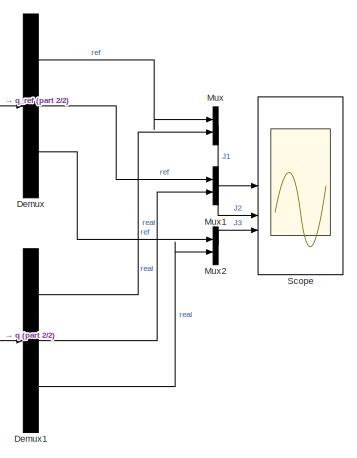
[diagram: root canvas - part 1/2, right side, full height]
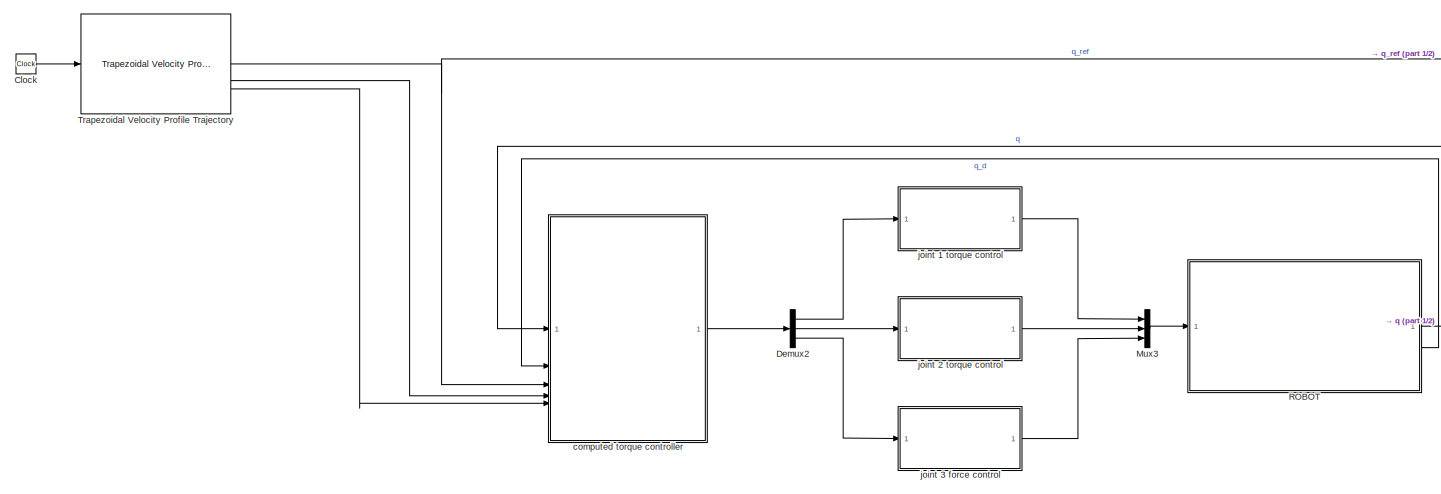
[diagram: root canvas - part 2/2, center side, full height]
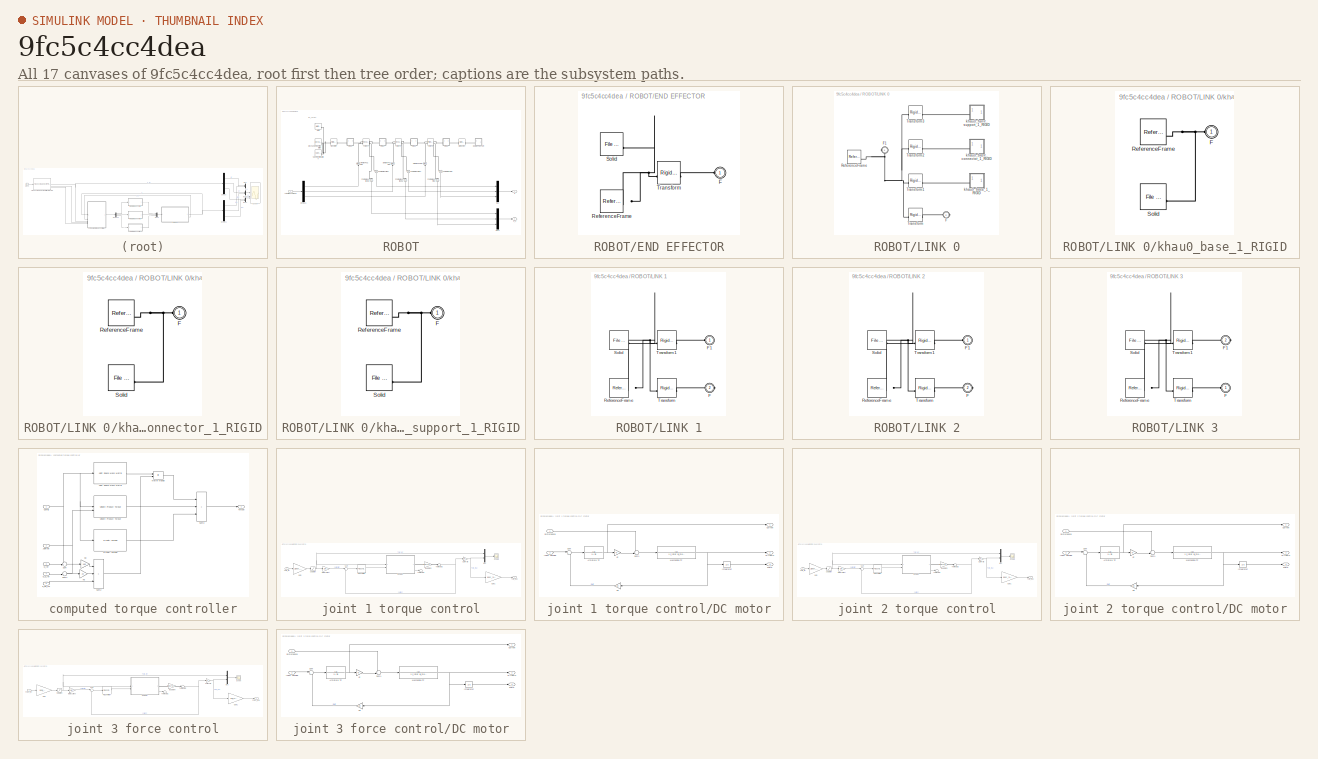
[diagram: thumbnail index - all 17 canvases of the model, root first then tree order]
MODEL slx_9fc5c4cc4dea
KIND model
CONFIG AbsTol = auto
CONFIG EnableMultiTasking = off
CONFIG FixedStep = 0.001
CONFIG MaxStep = auto
CONFIG MinStep = auto
CONFIG RelTol = 1e-3
CONFIG SampleTimeConstraint = Unconstrained
CONFIG SolverName = ode4
CONFIG StartTime = 0.0
CONFIG StopTime = 10.0
BLOCK [Clock] Clock
BLOCK [Demux] Demux
  Outputs = 3
BLOCK [Demux] Demux1
  Outputs = 3
BLOCK [Demux] Demux2
  Outputs = 3
BLOCK [Mux] Mux
  DisplayOption = bar
  Inputs = 2
BLOCK [Mux] Mux1
  DisplayOption = bar
  Inputs = 2
BLOCK [Mux] Mux2
  DisplayOption = bar
  Inputs = 2
BLOCK [Mux] Mux3
  DisplayOption = bar
  Inputs = 3
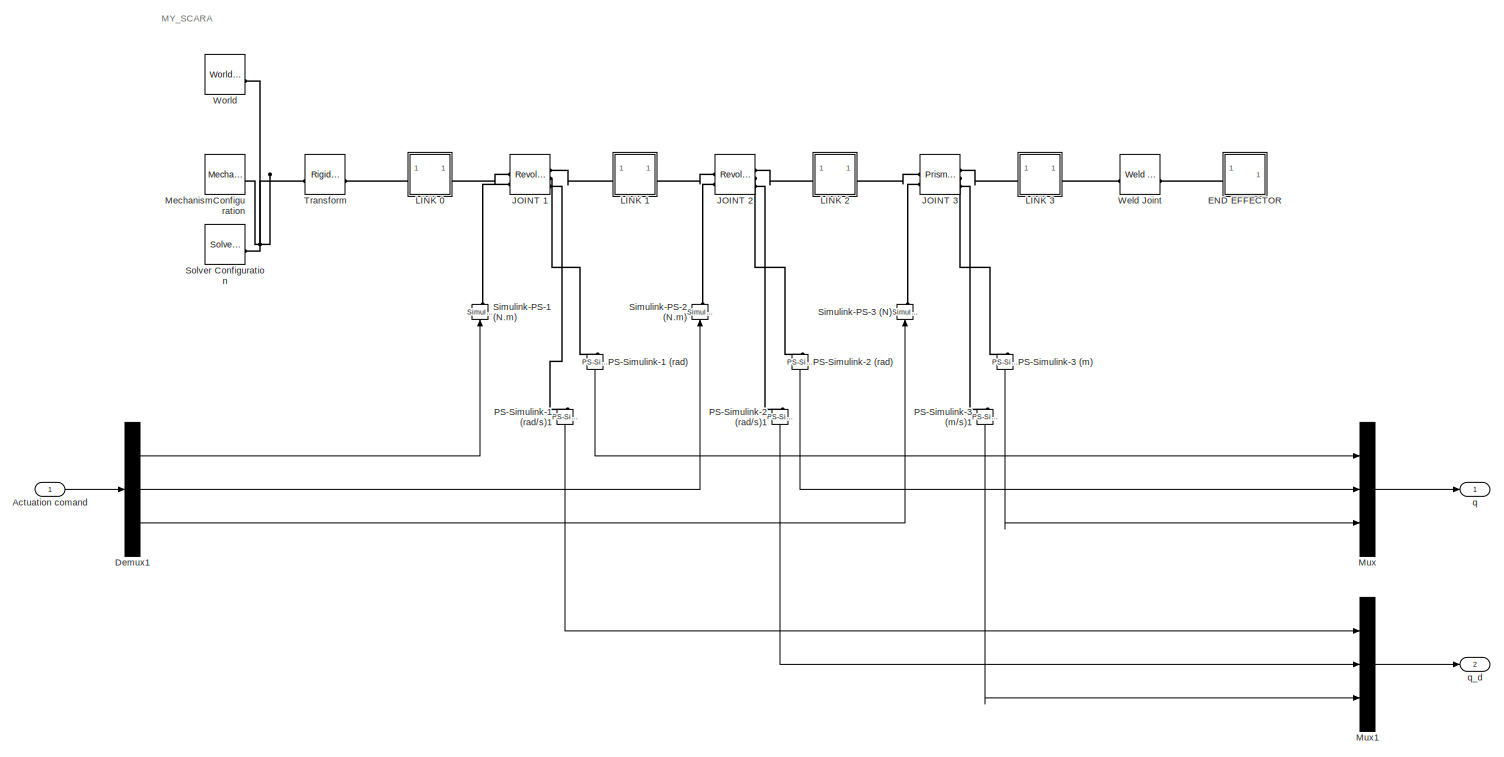
[diagram: ROBOT - part 1/1, most of the canvas]
BLOCK [SubSystem] ROBOT
BLOCK [Inport] ROBOT/Actuation comand
BLOCK [Demux] ROBOT/Demux1
  Outputs = 3
BLOCK [SubSystem] ROBOT/END EFFECTOR
BLOCK [PMIOPort] ROBOT/END EFFECTOR/F
  Side = Left
BLOCK [Reference] ROBOT/END EFFECTOR/ReferenceFrame  REF=sm_lib/Frames and
Transforms/Reference
Frame
  SourceBlock = sm_lib/Frames and\nTransforms/Reference\nFrame
  SourceType = Reference\nFrame
BLOCK [Reference] ROBOT/END EFFECTOR/Solid  REF=sm_lib/Body Elements/File Solid
  SourceBlock = sm_lib/Body Elements/File Solid
  SourceType = File Solid
BLOCK [Reference] ROBOT/END EFFECTOR/Transform  REF=sm_lib/Frames and
Transforms/Rigid
Transform
  SourceBlock = sm_lib/Frames and\nTransforms/Rigid\nTransform
  SourceType = Rigid\nTransform
BLOCK [Reference] ROBOT/JOINT 1  REF=sm_lib/Joints/Revolute Joint
  SourceBlock = sm_lib/Joints/Revolute Joint
  SourceType = Revolute Joint
BLOCK [Reference] ROBOT/JOINT 2  REF=sm_lib/Joints/Revolute Joint
  SourceBlock = sm_lib/Joints/Revolute Joint
  SourceType = Revolute Joint
BLOCK [Reference] ROBOT/JOINT 3  REF=sm_lib/Joints/Prismatic
Joint
  SourceBlock = sm_lib/Joints/Prismatic\nJoint
  SourceType = Prismatic\nJoint
BLOCK [SubSystem] ROBOT/LINK 0
BLOCK [PMIOPort] ROBOT/LINK 0/F
  Port = 2
  Side = Right
BLOCK [PMIOPort] ROBOT/LINK 0/F1
  Side = Left
BLOCK [Reference] ROBOT/LINK 0/ReferenceFrame  REF=sm_lib/Frames and
Transforms/Reference
Frame
  SourceBlock = sm_lib/Frames and\nTransforms/Reference\nFrame
  SourceType = Reference\nFrame
BLOCK [Reference] ROBOT/LINK 0/Transform  REF=sm_lib/Frames and
Transforms/Rigid
Transform
  SourceBlock = sm_lib/Frames and\nTransforms/Rigid\nTransform
  SourceType = Rigid\nTransform
BLOCK [Reference] ROBOT/LINK 0/Transform1  REF=sm_lib/Frames and
Transforms/Rigid
Transform
  SourceBlock = sm_lib/Frames and\nTransforms/Rigid\nTransform
  SourceType = Rigid\nTransform
BLOCK [Reference] ROBOT/LINK 0/Transform2  REF=sm_lib/Frames and
Transforms/Rigid
Transform
  SourceBlock = sm_lib/Frames and\nTransforms/Rigid\nTransform
  SourceType = Rigid\nTransform
BLOCK [Reference] ROBOT/LINK 0/Transform3  REF=sm_lib/Frames and
Transforms/Rigid
Transform
  SourceBlock = sm_lib/Frames and\nTransforms/Rigid\nTransform
  SourceType = Rigid\nTransform
BLOCK [SubSystem] ROBOT/LINK 0/khau0_base_1_RIGID
BLOCK [PMIOPort] ROBOT/LINK 0/khau0_base_1_RIGID/F
  Side = Left
BLOCK [Reference] ROBOT/LINK 0/khau0_base_1_RIGID/ReferenceFrame  REF=sm_lib/Frames and
Transforms/Reference
Frame
  SourceBlock = sm_lib/Frames and\nTransforms/Reference\nFrame
  SourceType = Reference\nFrame
BLOCK [Reference] ROBOT/LINK 0/khau0_base_1_RIGID/Solid  REF=sm_lib/Body Elements/File Solid
  SourceBlock = sm_lib/Body Elements/File Solid
  SourceType = File Solid
BLOCK [SubSystem] ROBOT/LINK 0/khau0_base_connector_1_RIGID
BLOCK [PMIOPort] ROBOT/LINK 0/khau0_base_connector_1_RIGID/F
  Side = Left
BLOCK [Reference] ROBOT/LINK 0/khau0_base_connector_1_RIGID/ReferenceFrame  REF=sm_lib/Frames and
Transforms/Reference
Frame
  SourceBlock = sm_lib/Frames and\nTransforms/Reference\nFrame
  SourceType = Reference\nFrame
BLOCK [Reference] ROBOT/LINK 0/khau0_base_connector_1_RIGID/Solid  REF=sm_lib/Body Elements/File Solid
  SourceBlock = sm_lib/Body Elements/File Solid
  SourceType = File Solid
BLOCK [SubSystem] ROBOT/LINK 0/khau0_base_support_1_RIGID
BLOCK [PMIOPort] ROBOT/LINK 0/khau0_base_support_1_RIGID/F
  Side = Left
BLOCK [Reference] ROBOT/LINK 0/khau0_base_support_1_RIGID/ReferenceFrame  REF=sm_lib/Frames and
Transforms/Reference
Frame
  SourceBlock = sm_lib/Frames and\nTransforms/Reference\nFrame
  SourceType = Reference\nFrame
BLOCK [Reference] ROBOT/LINK 0/khau0_base_support_1_RIGID/Solid  REF=sm_lib/Body Elements/File Solid
  SourceBlock = sm_lib/Body Elements/File Solid
  SourceType = File Solid
BLOCK [SubSystem] ROBOT/LINK 1
BLOCK [PMIOPort] ROBOT/LINK 1/F
  Port = 2
  Side = Right
BLOCK [PMIOPort] ROBOT/LINK 1/F1
  Side = Left
BLOCK [Reference] ROBOT/LINK 1/ReferenceFrame  REF=sm_lib/Frames and
Transforms/Reference
Frame
  SourceBlock = sm_lib/Frames and\nTransforms/Reference\nFrame
  SourceType = Reference\nFrame
BLOCK [Reference] ROBOT/LINK 1/Solid  REF=sm_lib/Body Elements/File Solid
  SourceBlock = sm_lib/Body Elements/File Solid
  SourceType = File Solid
BLOCK [Reference] ROBOT/LINK 1/Transform  REF=sm_lib/Frames and
Transforms/Rigid
Transform
  SourceBlock = sm_lib/Frames and\nTransforms/Rigid\nTransform
  SourceType = Rigid\nTransform
BLOCK [Reference] ROBOT/LINK 1/Transform1  REF=sm_lib/Frames and
Transforms/Rigid
Transform
  SourceBlock = sm_lib/Frames and\nTransforms/Rigid\nTransform
  SourceType = Rigid\nTransform
BLOCK [SubSystem] ROBOT/LINK 2
BLOCK [PMIOPort] ROBOT/LINK 2/F
  Port = 2
  Side = Right
BLOCK [PMIOPort] ROBOT/LINK 2/F1
  Side = Left
BLOCK [Reference] ROBOT/LINK 2/ReferenceFrame  REF=sm_lib/Frames and
Transforms/Reference
Frame
  SourceBlock = sm_lib/Frames and\nTransforms/Reference\nFrame
  SourceType = Reference\nFrame
BLOCK [Reference] ROBOT/LINK 2/Solid  REF=sm_lib/Body Elements/File Solid
  SourceBlock = sm_lib/Body Elements/File Solid
  SourceType = File Solid
BLOCK [Reference] ROBOT/LINK 2/Transform  REF=sm_lib/Frames and
Transforms/Rigid
Transform
  SourceBlock = sm_lib/Frames and\nTransforms/Rigid\nTransform
  SourceType = Rigid\nTransform
BLOCK [Reference] ROBOT/LINK 2/Transform1  REF=sm_lib/Frames and
Transforms/Rigid
Transform
  SourceBlock = sm_lib/Frames and\nTransforms/Rigid\nTransform
  SourceType = Rigid\nTransform
BLOCK [SubSystem] ROBOT/LINK 3
BLOCK [PMIOPort] ROBOT/LINK 3/F
  Side = Left
BLOCK [PMIOPort] ROBOT/LINK 3/F1
  Port = 2
  Side = Right
BLOCK [Reference] ROBOT/LINK 3/ReferenceFrame  REF=sm_lib/Frames and
Transforms/Reference
Frame
  SourceBlock = sm_lib/Frames and\nTransforms/Reference\nFrame
  SourceType = Reference\nFrame
BLOCK [Reference] ROBOT/LINK 3/Solid  REF=sm_lib/Body Elements/File Solid
  SourceBlock = sm_lib/Body Elements/File Solid
  SourceType = File Solid
BLOCK [Reference] ROBOT/LINK 3/Transform  REF=sm_lib/Frames and
Transforms/Rigid
Transform
  SourceBlock = sm_lib/Frames and\nTransforms/Rigid\nTransform
  SourceType = Rigid\nTransform
BLOCK [Reference] ROBOT/LINK 3/Transform1  REF=sm_lib/Frames and
Transforms/Rigid
Transform
  SourceBlock = sm_lib/Frames and\nTransforms/Rigid\nTransform
  SourceType = Rigid\nTransform
BLOCK [Reference] ROBOT/MechanismConfiguration  REF=sm_lib/Utilities/Mechanism
Configuration
  SourceBlock = sm_lib/Utilities/Mechanism\nConfiguration
  SourceType = Mechanism\nConfiguration
BLOCK [Mux] ROBOT/Mux
  DisplayOption = bar
  Inputs = 3
BLOCK [Mux] ROBOT/Mux1
  DisplayOption = bar
  Inputs = 3
BLOCK [Reference] ROBOT/PS-Simulink-1 (rad)  REF=nesl_utility/PS-Simulink
Converter
  NameLocation = left
  SourceBlock = nesl_utility/PS-Simulink\nConverter
  SourceType = PS-Simulink\nConverter
BLOCK [Reference] ROBOT/PS-Simulink-1 (rad//s)1  REF=nesl_utility/PS-Simulink
Converter
  NameLocation = left
  SourceBlock = nesl_utility/PS-Simulink\nConverter
  SourceType = PS-Simulink\nConverter
BLOCK [Reference] ROBOT/PS-Simulink-2 (rad)  REF=nesl_utility/PS-Simulink
Converter
  NameLocation = left
  SourceBlock = nesl_utility/PS-Simulink\nConverter
  SourceType = PS-Simulink\nConverter
BLOCK [Reference] ROBOT/PS-Simulink-2 (rad//s)1  REF=nesl_utility/PS-Simulink
Converter
  NameLocation = left
  SourceBlock = nesl_utility/PS-Simulink\nConverter
  SourceType = PS-Simulink\nConverter
BLOCK [Reference] ROBOT/PS-Simulink-3 (m)  REF=nesl_utility/PS-Simulink
Converter
  NameLocation = left
  SourceBlock = nesl_utility/PS-Simulink\nConverter
  SourceType = PS-Simulink\nConverter
BLOCK [Reference] ROBOT/PS-Simulink-3 (m//s)1  REF=nesl_utility/PS-Simulink
Converter
  NameLocation = left
  SourceBlock = nesl_utility/PS-Simulink\nConverter
  SourceType = PS-Simulink\nConverter
BLOCK [Reference] ROBOT/Simulink-PS-1 (N.m)  REF=nesl_utility/Simulink-PS
Converter
  NameLocation = right
  SourceBlock = nesl_utility/Simulink-PS\nConverter
  SourceType = Simulink-PS\nConverter
BLOCK [Reference] ROBOT/Simulink-PS-2 (N.m)  REF=nesl_utility/Simulink-PS
Converter
  NameLocation = right
  SourceBlock = nesl_utility/Simulink-PS\nConverter
  SourceType = Simulink-PS\nConverter
BLOCK [Reference] ROBOT/Simulink-PS-3 (N)  REF=nesl_utility/Simulink-PS
Converter
  NameLocation = right
  SourceBlock = nesl_utility/Simulink-PS\nConverter
  SourceType = Simulink-PS\nConverter
BLOCK [Reference] ROBOT/Solver Configuration  REF=nesl_utility/Solver
Configuration
  SourceBlock = nesl_utility/Solver\nConfiguration
  SourceType = Solver\nConfiguration
BLOCK [Reference] ROBOT/Transform  REF=sm_lib/Frames and
Transforms/Rigid
Transform
  SourceBlock = sm_lib/Frames and\nTransforms/Rigid\nTransform
  SourceType = Rigid\nTransform
BLOCK [Reference] ROBOT/Weld Joint  REF=sm_lib/Joints/Weld Joint
  SourceBlock = sm_lib/Joints/Weld Joint
  SourceType = Weld Joint
BLOCK [Reference] ROBOT/World  REF=sm_lib/Frames and
Transforms/World Frame
  SourceBlock = sm_lib/Frames and\nTransforms/World Frame
  SourceType = World Frame
BLOCK [Outport] ROBOT/q
BLOCK [Outport] ROBOT/q_d
  Port = 2
BLOCK [Scope] Scope
  Floating = off
  NumInputPorts = 3
  ScopeSpecificationString = Simulink.scopes.TimeScopeBlockCfg('CurrentConfiguration', extmgr.ConfigurationSet(extmgr.Configuration('Core','General UI',true),extmgr.Configuration('Core','Source UI',true),extmgr.Configuration('Sources','WiredSimulink',true,'DataLoggingVariableName','ScopeData1'),extmgr.Configuration('Visuals','Time Domain',true,'SerializedDisplays',{struct('MinYLimReal','-3.28406','MaxYLimReal','3.27443','YLab...<+2804ch>
BLOCK [Reference] Trapezoidal Velocity Profile Trajectory  REF=robotcorelib/Trapezoidal Velocity Profile Trajectory
  LibrarySourceBlock = robotutilslib/Trapezoidal Velocity Profile Trajectory
  SourceBlock = robotcorelib/Trapezoidal Velocity Profile Trajectory
  SourceType = robotics.slcore.internal.block.TrapVelTrajSys
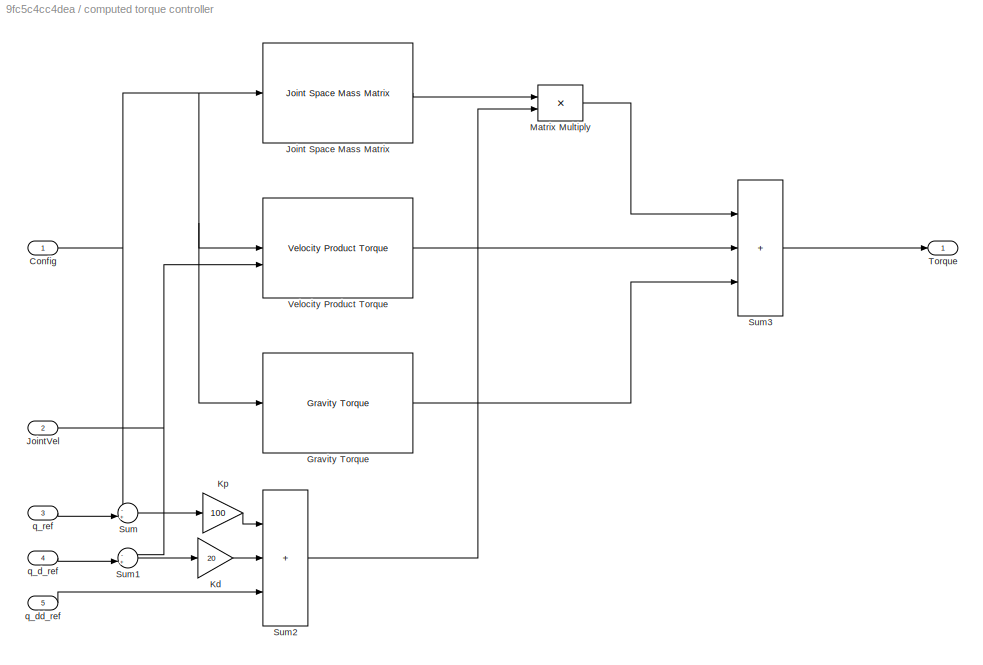
BLOCK [SubSystem] computed torque controller
BLOCK [Inport] computed torque controller/Config
BLOCK [Reference] computed torque controller/Gravity Torque  REF=robotmaniplib/Gravity Torque
  SourceBlock = robotmaniplib/Gravity Torque
  SourceType = Gravity Torque
BLOCK [Reference] computed torque controller/Joint Space Mass Matrix  REF=robotmaniplib/Joint Space Mass Matrix
  SourceBlock = robotmaniplib/Joint Space Mass Matrix
  SourceType = Joint Space Mass Matrix
BLOCK [Inport] computed torque controller/JointVel
  Port = 2
BLOCK [Gain] computed torque controller/Kd
  Gain = 20
BLOCK [Gain] computed torque controller/Kp
  Gain = 100
BLOCK [Product] computed torque controller/Matrix Multiply
  Multiplication = Matrix(*)
BLOCK [Sum] computed torque controller/Sum
  Inputs = -+|
BLOCK [Sum] computed torque controller/Sum1
  Inputs = -+|
BLOCK [Sum] computed torque controller/Sum2
  IconShape = rectangular
  Inputs = +++
BLOCK [Sum] computed torque controller/Sum3
  IconShape = rectangular
  Inputs = +++
BLOCK [Outport] computed torque controller/Torque
BLOCK [Reference] computed torque controller/Velocity Product Torque  REF=robotmaniplib/Velocity Product Torque
  SourceBlock = robotmaniplib/Velocity Product Torque
  SourceType = Velocity Product Torque
BLOCK [Inport] computed torque controller/q_d_ref
  Port = 4
BLOCK [Inport] computed torque controller/q_dd_ref
  Port = 5
BLOCK [Inport] computed torque controller/q_ref
  Port = 3
BLOCK [SubSystem] joint 1 torque control
BLOCK [Gain] joint 1 torque control/Cur to Torq
  Gain = Kt
BLOCK [SubSystem] joint 1 torque control/DC motor
BLOCK [TransferFcn] joint 1 torque control/DC motor/Armature TF
  Denominator = [L R]
BLOCK [Outport] joint 1 torque control/DC motor/Current
BLOCK [Inport] joint 1 torque control/DC motor/DIsturbance
BLOCK [Inport] joint 1 torque control/DC motor/Input voltage
  Port = 2
BLOCK [Integrator] joint 1 torque control/DC motor/Integrator
BLOCK [Gain] joint 1 torque control/DC motor/Ke
  Gain = Ke
BLOCK [Gain] joint 1 torque control/DC motor/Kt
  Gain = Kt
BLOCK [TransferFcn] joint 1 torque control/DC motor/Mechanical TF
  Denominator = [J_rotor B_motor]
BLOCK [Sum] joint 1 torque control/DC motor/Sum
  Inputs = |+-
BLOCK [Sum] joint 1 torque control/DC motor/Sum1
  Inputs = -+|
BLOCK [Outport] joint 1 torque control/DC motor/Theta
  Port = 3
BLOCK [Outport] joint 1 torque control/DC motor/w (rad//s)
  Port = 2
BLOCK [Gain] joint 1 torque control/Gain
  Gain = 1/gear_ratio_j1
BLOCK [Gain] joint 1 torque control/Gain1
  Gain = gear_ratio_j1
BLOCK [Mux] joint 1 torque control/Mux
  DisplayOption = bar
  Inputs = 2
BLOCK [Reference] joint 1 torque control/PID Controller  REF=slpidlib/PID Controller
  LibrarySourceBlock = simulink/Continuous/PID Controller
  SourceBlock = slpidlib/PID Controller
  SourceType = PID 1dof
BLOCK [Saturate] joint 1 torque control/Saturation
  LowerLimit = -upper_torque_limit
  UpperLimit = upper_torque_limit
BLOCK [Scope] joint 1 torque control/Scope
  Floating = off
  NumInputPorts = 1
  ScopeSpecificationString = Simulink.scopes.TimeScopeBlockCfg('CurrentConfiguration', extmgr.ConfigurationSet(extmgr.Configuration('Core','General UI',true),extmgr.Configuration('Core','Source UI',true),extmgr.Configuration('Sources','WiredSimulink',true),extmgr.Configuration('Visuals','Time Domain',true,'SerializedDisplays',{struct('MinYLimReal','-3.85204','MaxYLimReal','3.79758','YLabelReal','','MinYLimMag','0.00000','MaxY...<+1457ch>
BLOCK [Sum] joint 1 torque control/Sum
  Inputs = |+-
BLOCK [Terminator] joint 1 torque control/Terminator1
BLOCK [Terminator] joint 1 torque control/Terminator2
BLOCK [Outport] joint 1 torque control/Torq_real
BLOCK [Inport] joint 1 torque control/Torq_ref
BLOCK [Gain] joint 1 torque control/rad//s to rpm
  Gain = 60/(2*pi)
BLOCK [Gain] joint 1 torque control/torq to current
  Gain = 1/Kt
BLOCK [SubSystem] joint 2 torque control
BLOCK [Gain] joint 2 torque control/Cur to Torq
  Gain = Kt
BLOCK [SubSystem] joint 2 torque control/DC motor
BLOCK [TransferFcn] joint 2 torque control/DC motor/Armature TF
  Denominator = [L R]
BLOCK [Outport] joint 2 torque control/DC motor/Current
BLOCK [Inport] joint 2 torque control/DC motor/DIsturbance
BLOCK [Inport] joint 2 torque control/DC motor/Input voltage
  Port = 2
BLOCK [Integrator] joint 2 torque control/DC motor/Integrator
BLOCK [Gain] joint 2 torque control/DC motor/Ke
  Gain = Ke
BLOCK [Gain] joint 2 torque control/DC motor/Kt
  Gain = Kt
BLOCK [TransferFcn] joint 2 torque control/DC motor/Mechanical TF
  Denominator = [J_rotor B_motor]
BLOCK [Sum] joint 2 torque control/DC motor/Sum
  Inputs = |+-
BLOCK [Sum] joint 2 torque control/DC motor/Sum1
  Inputs = -+|
BLOCK [Outport] joint 2 torque control/DC motor/Theta
  Port = 3
BLOCK [Outport] joint 2 torque control/DC motor/w (rad//s)
  Port = 2
BLOCK [Gain] joint 2 torque control/Gain
  Gain = 1/gear_ratio_j2
BLOCK [Gain] joint 2 torque control/Gain1
  Gain = gear_ratio_j2
BLOCK [Mux] joint 2 torque control/Mux
  DisplayOption = bar
  Inputs = 2
BLOCK [Reference] joint 2 torque control/PID Controller  REF=slpidlib/PID Controller
  LibrarySourceBlock = simulink/Continuous/PID Controller
  SourceBlock = slpidlib/PID Controller
  SourceType = PID 1dof
BLOCK [Saturate] joint 2 torque control/Saturation
  LowerLimit = -upper_torque_limit
  UpperLimit = upper_torque_limit
BLOCK [Scope] joint 2 torque control/Scope
  Floating = off
  NumInputPorts = 1
  ScopeSpecificationString = Simulink.scopes.TimeScopeBlockCfg('CurrentConfiguration', extmgr.ConfigurationSet(extmgr.Configuration('Core','General UI',true),extmgr.Configuration('Core','Source UI',true),extmgr.Configuration('Sources','WiredSimulink',true),extmgr.Configuration('Visuals','Time Domain',true,'SerializedDisplays',{struct('MinYLimReal','-0.88593','MaxYLimReal','1.30087','YLabelReal','','MinYLimMag','0.00000','MaxY...<+1412ch>
BLOCK [Sum] joint 2 torque control/Sum
  Inputs = |+-
BLOCK [Terminator] joint 2 torque control/Terminator1
BLOCK [Terminator] joint 2 torque control/Terminator2
BLOCK [Outport] joint 2 torque control/Torq_real
BLOCK [Inport] joint 2 torque control/Torq_ref
BLOCK [Gain] joint 2 torque control/rad//s to rpm
  Gain = 60/(2*pi)
BLOCK [Gain] joint 2 torque control/torq to current
  Gain = 1/Kt
BLOCK [SubSystem] joint 3 force control
BLOCK [Gain] joint 3 force control/Cur to Torq
  Gain = Kt
BLOCK [SubSystem] joint 3 force control/DC motor
BLOCK [TransferFcn] joint 3 force control/DC motor/Armature TF
  Denominator = [L R]
BLOCK [Outport] joint 3 force control/DC motor/Current
BLOCK [Inport] joint 3 force control/DC motor/DIsturbance
BLOCK [Inport] joint 3 force control/DC motor/Input voltage
  Port = 2
BLOCK [Integrator] joint 3 force control/DC motor/Integrator
BLOCK [Gain] joint 3 force control/DC motor/Ke
  Gain = Ke
BLOCK [Gain] joint 3 force control/DC motor/Kt
  Gain = Kt
BLOCK [TransferFcn] joint 3 force control/DC motor/Mechanical TF
  Denominator = [J_rotor B_motor]
BLOCK [Sum] joint 3 force control/DC motor/Sum
  Inputs = |+-
BLOCK [Sum] joint 3 force control/DC motor/Sum1
  Inputs = -+|
BLOCK [Outport] joint 3 force control/DC motor/Theta
  Port = 3
BLOCK [Outport] joint 3 force control/DC motor/w (rad//s)
  Port = 2
BLOCK [Outport] joint 3 force control/Force_real
BLOCK [Inport] joint 3 force control/Force_ref
BLOCK [Gain] joint 3 force control/Gain
  Gain = 1/ball_screw_ratio
BLOCK [Gain] joint 3 force control/Gain1
  Gain = ball_screw_ratio
BLOCK [Mux] joint 3 force control/Mux
  DisplayOption = bar
  Inputs = 2
BLOCK [Reference] joint 3 force control/PID Controller  REF=slpidlib/PID Controller
  LibrarySourceBlock = simulink/Continuous/PID Controller
  SourceBlock = slpidlib/PID Controller
  SourceType = PID 1dof
BLOCK [Saturate] joint 3 force control/Saturation
  LowerLimit = -upper_torque_limit
  UpperLimit = upper_torque_limit
BLOCK [Scope] joint 3 force control/Scope
  Floating = off
  NumInputPorts = 1
  ScopeSpecificationString = Simulink.scopes.TimeScopeBlockCfg('CurrentConfiguration', extmgr.ConfigurationSet(extmgr.Configuration('Core','General UI',true),extmgr.Configuration('Core','Source UI',true),extmgr.Configuration('Sources','WiredSimulink',true),extmgr.Configuration('Visuals','Time Domain',true,'SerializedDisplays',{struct('MinYLimReal','-0.09862','MaxYLimReal','0.01096','YLabelReal','','MinYLimMag','0.00000','MaxY...<+1412ch>
BLOCK [Sum] joint 3 force control/Sum
  Inputs = |+-
BLOCK [Terminator] joint 3 force control/Terminator1
BLOCK [Terminator] joint 3 force control/Terminator2
BLOCK [Gain] joint 3 force control/rad//s to rpm
  Gain = 60/(2*pi)
BLOCK [Gain] joint 3 force control/torq to current
  Gain = 1/Kt
ANNOTATION ROBOT: MY_SCARA
LINE Clock:1 -> Trapezoidal Velocity Profile Trajectory:1
LINE Demux1:1 -> Mux:2
LINE Demux1:2 -> Mux1:2
LINE Demux1:3 -> Mux2:2
LINE Demux2:1 -> joint 1 torque control:1
LINE Demux2:2 -> joint 2 torque control:1
LINE Demux2:3 -> joint 3 force control:1
LINE Demux:1 -> Mux:1
LINE Demux:2 -> Mux1:1
LINE Demux:3 -> Mux2:1
LINE Mux1:1 -> Scope:2
LINE Mux2:1 -> Scope:3
LINE Mux3:1 -> ROBOT:1
LINE Mux:1 -> Scope:1
LINE ROBOT/Actuation comand:1 -> ROBOT/Demux1:1
LINE ROBOT/Demux1:1 -> ROBOT/Simulink-PS-1 (N.m):1
LINE ROBOT/Demux1:2 -> ROBOT/Simulink-PS-2 (N.m):1
LINE ROBOT/Demux1:3 -> ROBOT/Simulink-PS-3 (N):1
LINE ROBOT/Mux1:1 -> ROBOT/q_d:1
LINE ROBOT/Mux:1 -> ROBOT/q:1
LINE ROBOT/PS-Simulink-1 (rad):1 -> ROBOT/Mux:1
LINE ROBOT/PS-Simulink-1 (rad//s)1:1 -> ROBOT/Mux1:1
LINE ROBOT/PS-Simulink-2 (rad):1 -> ROBOT/Mux:2
LINE ROBOT/PS-Simulink-2 (rad//s)1:1 -> ROBOT/Mux1:2
LINE ROBOT/PS-Simulink-3 (m):1 -> ROBOT/Mux:3
LINE ROBOT/PS-Simulink-3 (m//s)1:1 -> ROBOT/Mux1:3
NET ROBOT:1 -> Demux1:1, computed torque controller:1
LINE ROBOT:2 -> computed torque controller:2
NET Trapezoidal Velocity Profile Trajectory:1 -> Demux:1, computed torque controller:3
LINE Trapezoidal Velocity Profile Trajectory:2 -> computed torque controller:4
LINE Trapezoidal Velocity Profile Trajectory:3 -> computed torque controller:5
NET computed torque controller/Config:1 -> computed torque controller/Gravity Torque:1, computed torque controller/Joint Space Mass Matrix:1, computed torque controller/Sum:1, computed torque controller/Velocity Product Torque:1
LINE computed torque controller/Gravity Torque:1 -> computed torque controller/Sum3:3
LINE computed torque controller/Joint Space Mass Matrix:1 -> computed torque controller/Matrix Multiply:1
NET computed torque controller/JointVel:1 -> computed torque controller/Sum1:1, computed torque controller/Velocity Product Torque:2
LINE computed torque controller/Kd:1 -> computed torque controller/Sum2:2
LINE computed torque controller/Kp:1 -> computed torque controller/Sum2:1
LINE computed torque controller/Matrix Multiply:1 -> computed torque controller/Sum3:1
LINE computed torque controller/Sum1:1 -> computed torque controller/Kd:1
LINE computed torque controller/Sum2:1 -> computed torque controller/Matrix Multiply:2
LINE computed torque controller/Sum3:1 -> computed torque controller/Torque:1
LINE computed torque controller/Sum:1 -> computed torque controller/Kp:1
LINE computed torque controller/Velocity Product Torque:1 -> computed torque controller/Sum3:2
LINE computed torque controller/q_d_ref:1 -> computed torque controller/Sum1:2
LINE computed torque controller/q_dd_ref:1 -> computed torque controller/Sum2:3
LINE computed torque controller/q_ref:1 -> computed torque controller/Sum:2
LINE computed torque controller:1 -> Demux2:1
NET joint 1 torque control/Cur to Torq:1 -> joint 1 torque control/Gain1:1, joint 1 torque control/Mux:2
NET joint 1 torque control/DC motor/Armature TF:1 -> joint 1 torque control/DC motor/Current:1, joint 1 torque control/DC motor/Kt:1
LINE joint 1 torque control/DC motor/DIsturbance:1 -> joint 1 torque control/DC motor/Sum1:1
LINE joint 1 torque control/DC motor/Input voltage:1 -> joint 1 torque control/DC motor/Sum:1
LINE joint 1 torque control/DC motor/Integrator:1 -> joint 1 torque control/DC motor/Theta:1
LINE joint 1 torque control/DC motor/Ke:1 -> joint 1 torque control/DC motor/Sum:2
LINE joint 1 torque control/DC motor/Kt:1 -> joint 1 torque control/DC motor/Sum1:2
NET joint 1 torque control/DC motor/Mechanical TF:1 -> joint 1 torque control/DC motor/Integrator:1, joint 1 torque control/DC motor/Ke:1, joint 1 torque control/DC motor/w (rad//s):1
LINE joint 1 torque control/DC motor/Sum1:1 -> joint 1 torque control/DC motor/Mechanical TF:1
LINE joint 1 torque control/DC motor/Sum:1 -> joint 1 torque control/DC motor/Armature TF:1
NET joint 1 torque control/DC motor:1 -> joint 1 torque control/Cur to Torq:1, joint 1 torque control/Sum:2
LINE joint 1 torque control/DC motor:2 -> joint 1 torque control/rad//s to rpm:1
LINE joint 1 torque control/DC motor:3 -> joint 1 torque control/Terminator1:1
LINE joint 1 torque control/Gain1:1 -> joint 1 torque control/Torq_real:1
LINE joint 1 torque control/Gain:1 -> joint 1 torque control/Saturation:1
LINE joint 1 torque control/Mux:1 -> joint 1 torque control/Scope:1
LINE joint 1 torque control/PID Controller:1 -> joint 1 torque control/DC motor:2
NET joint 1 torque control/Saturation:1 -> joint 1 torque control/DC motor:1, joint 1 torque control/Mux:1, joint 1 torque control/torq to current:1
LINE joint 1 torque control/Sum:1 -> joint 1 torque control/PID Controller:1
LINE joint 1 torque control/Torq_ref:1 -> joint 1 torque control/Gain:1
LINE joint 1 torque control/rad//s to rpm:1 -> joint 1 torque control/Terminator2:1
LINE joint 1 torque control/torq to current:1 -> joint 1 torque control/Sum:1
LINE joint 1 torque control:1 -> Mux3:1
NET joint 2 torque control/Cur to Torq:1 -> joint 2 torque control/Gain1:1, joint 2 torque control/Mux:2
NET joint 2 torque control/DC motor/Armature TF:1 -> joint 2 torque control/DC motor/Current:1, joint 2 torque control/DC motor/Kt:1
LINE joint 2 torque control/DC motor/DIsturbance:1 -> joint 2 torque control/DC motor/Sum1:1
LINE joint 2 torque control/DC motor/Input voltage:1 -> joint 2 torque control/DC motor/Sum:1
LINE joint 2 torque control/DC motor/Integrator:1 -> joint 2 torque control/DC motor/Theta:1
LINE joint 2 torque control/DC motor/Ke:1 -> joint 2 torque control/DC motor/Sum:2
LINE joint 2 torque control/DC motor/Kt:1 -> joint 2 torque control/DC motor/Sum1:2
NET joint 2 torque control/DC motor/Mechanical TF:1 -> joint 2 torque control/DC motor/Integrator:1, joint 2 torque control/DC motor/Ke:1, joint 2 torque control/DC motor/w (rad//s):1
LINE joint 2 torque control/DC motor/Sum1:1 -> joint 2 torque control/DC motor/Mechanical TF:1
LINE joint 2 torque control/DC motor/Sum:1 -> joint 2 torque control/DC motor/Armature TF:1
NET joint 2 torque control/DC motor:1 -> joint 2 torque control/Cur to Torq:1, joint 2 torque control/Sum:2
LINE joint 2 torque control/DC motor:2 -> joint 2 torque control/rad//s to rpm:1
LINE joint 2 torque control/DC motor:3 -> joint 2 torque control/Terminator1:1
LINE joint 2 torque control/Gain1:1 -> joint 2 torque control/Torq_real:1
LINE joint 2 torque control/Gain:1 -> joint 2 torque control/Saturation:1
LINE joint 2 torque control/Mux:1 -> joint 2 torque control/Scope:1
LINE joint 2 torque control/PID Controller:1 -> joint 2 torque control/DC motor:2
NET joint 2 torque control/Saturation:1 -> joint 2 torque control/DC motor:1, joint 2 torque control/Mux:1, joint 2 torque control/torq to current:1
LINE joint 2 torque control/Sum:1 -> joint 2 torque control/PID Controller:1
LINE joint 2 torque control/Torq_ref:1 -> joint 2 torque control/Gain:1
LINE joint 2 torque control/rad//s to rpm:1 -> joint 2 torque control/Terminator2:1
LINE joint 2 torque control/torq to current:1 -> joint 2 torque control/Sum:1
LINE joint 2 torque control:1 -> Mux3:2
NET joint 3 force control/Cur to Torq:1 -> joint 3 force control/Gain1:1, joint 3 force control/Mux:2
NET joint 3 force control/DC motor/Armature TF:1 -> joint 3 force control/DC motor/Current:1, joint 3 force control/DC motor/Kt:1
LINE joint 3 force control/DC motor/DIsturbance:1 -> joint 3 force control/DC motor/Sum1:1
LINE joint 3 force control/DC motor/Input voltage:1 -> joint 3 force control/DC motor/Sum:1
LINE joint 3 force control/DC motor/Integrator:1 -> joint 3 force control/DC motor/Theta:1
LINE joint 3 force control/DC motor/Ke:1 -> joint 3 force control/DC motor/Sum:2
LINE joint 3 force control/DC motor/Kt:1 -> joint 3 force control/DC motor/Sum1:2
NET joint 3 force control/DC motor/Mechanical TF:1 -> joint 3 force control/DC motor/Integrator:1, joint 3 force control/DC motor/Ke:1, joint 3 force control/DC motor/w (rad//s):1
LINE joint 3 force control/DC motor/Sum1:1 -> joint 3 force control/DC motor/Mechanical TF:1
LINE joint 3 force control/DC motor/Sum:1 -> joint 3 force control/DC motor/Armature TF:1
NET joint 3 force control/DC motor:1 -> joint 3 force control/Cur to Torq:1, joint 3 force control/Sum:2
LINE joint 3 force control/DC motor:2 -> joint 3 force control/rad//s to rpm:1
LINE joint 3 force control/DC motor:3 -> joint 3 force control/Terminator1:1
LINE joint 3 force control/Force_ref:1 -> joint 3 force control/Gain:1
LINE joint 3 force control/Gain1:1 -> joint 3 force control/Force_real:1
LINE joint 3 force control/Gain:1 -> joint 3 force control/Saturation:1
LINE joint 3 force control/Mux:1 -> joint 3 force control/Scope:1
LINE joint 3 force control/PID Controller:1 -> joint 3 force control/DC motor:2
NET joint 3 force control/Saturation:1 -> joint 3 force control/DC motor:1, joint 3 force control/Mux:1, joint 3 force control/torq to current:1
LINE joint 3 force control/Sum:1 -> joint 3 force control/PID Controller:1
LINE joint 3 force control/rad//s to rpm:1 -> joint 3 force control/Terminator2:1
LINE joint 3 force control/torq to current:1 -> joint 3 force control/Sum:1
LINE joint 3 force control:1 -> Mux3:3
PLINE ROBOT/END EFFECTOR/F:RConn1 -- ROBOT/END EFFECTOR/Transform:RConn1
PNET net1: ROBOT/END EFFECTOR/ReferenceFrame:RConn1 -- ROBOT/END EFFECTOR/Solid:RConn1 -- ROBOT/END EFFECTOR/Transform:LConn1
PLINE ROBOT/END EFFECTOR:LConn1 -- ROBOT/Weld Joint:RConn1
PLINE ROBOT/JOINT 1:LConn1 -- ROBOT/LINK 0:RConn1
PLINE ROBOT/JOINT 1:LConn2 -- ROBOT/Simulink-PS-1 (N.m):RConn1
PLINE ROBOT/JOINT 1:RConn1 -- ROBOT/LINK 1:LConn1
PLINE ROBOT/JOINT 1:RConn2 -- ROBOT/PS-Simulink-1 (rad):LConn1
PLINE ROBOT/JOINT 1:RConn3 -- ROBOT/PS-Simulink-1 (rad//s)1:LConn1
PLINE ROBOT/JOINT 2:LConn1 -- ROBOT/LINK 1:RConn1
PLINE ROBOT/JOINT 2:LConn2 -- ROBOT/Simulink-PS-2 (N.m):RConn1
PLINE ROBOT/JOINT 2:RConn1 -- ROBOT/LINK 2:LConn1
PLINE ROBOT/JOINT 2:RConn2 -- ROBOT/PS-Simulink-2 (rad):LConn1
PLINE ROBOT/JOINT 2:RConn3 -- ROBOT/PS-Simulink-2 (rad//s)1:LConn1
PLINE ROBOT/JOINT 3:LConn1 -- ROBOT/LINK 2:RConn1
PLINE ROBOT/JOINT 3:LConn2 -- ROBOT/Simulink-PS-3 (N):RConn1
PLINE ROBOT/JOINT 3:RConn1 -- ROBOT/LINK 3:LConn1
PLINE ROBOT/JOINT 3:RConn2 -- ROBOT/PS-Simulink-3 (m):LConn1
PLINE ROBOT/JOINT 3:RConn3 -- ROBOT/PS-Simulink-3 (m//s)1:LConn1
PNET net2: ROBOT/LINK 0/F1:RConn1 -- ROBOT/LINK 0/ReferenceFrame:RConn1 -- ROBOT/LINK 0/Transform1:LConn1 -- ROBOT/LINK 0/Transform2:LConn1 -- ROBOT/LINK 0/Transform3:LConn1 -- ROBOT/LINK 0/Transform:LConn1
PLINE ROBOT/LINK 0/F:RConn1 -- ROBOT/LINK 0/Transform:RConn1
PLINE ROBOT/LINK 0/Transform1:RConn1 -- ROBOT/LINK 0/khau0_base_1_RIGID:LConn1
PLINE ROBOT/LINK 0/Transform2:RConn1 -- ROBOT/LINK 0/khau0_base_connector_1_RIGID:LConn1
PLINE ROBOT/LINK 0/Transform3:RConn1 -- ROBOT/LINK 0/khau0_base_support_1_RIGID:LConn1
PNET net3: ROBOT/LINK 0/khau0_base_1_RIGID/F:RConn1 -- ROBOT/LINK 0/khau0_base_1_RIGID/ReferenceFrame:RConn1 -- ROBOT/LINK 0/khau0_base_1_RIGID/Solid:RConn1
PNET net4: ROBOT/LINK 0/khau0_base_connector_1_RIGID/F:RConn1 -- ROBOT/LINK 0/khau0_base_connector_1_RIGID/ReferenceFrame:RConn1 -- ROBOT/LINK 0/khau0_base_connector_1_RIGID/Solid:RConn1
PNET net5: ROBOT/LINK 0/khau0_base_support_1_RIGID/F:RConn1 -- ROBOT/LINK 0/khau0_base_support_1_RIGID/ReferenceFrame:RConn1 -- ROBOT/LINK 0/khau0_base_support_1_RIGID/Solid:RConn1
PLINE ROBOT/LINK 0:LConn1 -- ROBOT/Transform:RConn1
PLINE ROBOT/LINK 1/F1:RConn1 -- ROBOT/LINK 1/Transform1:RConn1
PLINE ROBOT/LINK 1/F:RConn1 -- ROBOT/LINK 1/Transform:RConn1
PNET net6: ROBOT/LINK 1/ReferenceFrame:RConn1 -- ROBOT/LINK 1/Solid:RConn1 -- ROBOT/LINK 1/Transform1:LConn1 -- ROBOT/LINK 1/Transform:LConn1
PLINE ROBOT/LINK 2/F1:RConn1 -- ROBOT/LINK 2/Transform1:RConn1
PLINE ROBOT/LINK 2/F:RConn1 -- ROBOT/LINK 2/Transform:RConn1
PNET net7: ROBOT/LINK 2/ReferenceFrame:RConn1 -- ROBOT/LINK 2/Solid:RConn1 -- ROBOT/LINK 2/Transform1:LConn1 -- ROBOT/LINK 2/Transform:LConn1
PLINE ROBOT/LINK 3/F1:RConn1 -- ROBOT/LINK 3/Transform1:RConn1
PLINE ROBOT/LINK 3/F:RConn1 -- ROBOT/LINK 3/Transform:RConn1
PNET net8: ROBOT/LINK 3/ReferenceFrame:RConn1 -- ROBOT/LINK 3/Solid:RConn1 -- ROBOT/LINK 3/Transform1:LConn1 -- ROBOT/LINK 3/Transform:LConn1
PLINE ROBOT/LINK 3:RConn1 -- ROBOT/Weld Joint:LConn1
PNET net9: ROBOT/MechanismConfiguration:RConn1 -- ROBOT/Solver Configuration:RConn1 -- ROBOT/Transform:LConn1 -- ROBOT/World:RConn1
note: NET lines group one-source signal fan-out (src -> all destinations, sorted); 1:1 wires keep LINE; PNET lines group multi-terminal physical nets as a canonical sorted terminal list (undirected conserving connections); 2-terminal nets keep the pairwise PLINE form
